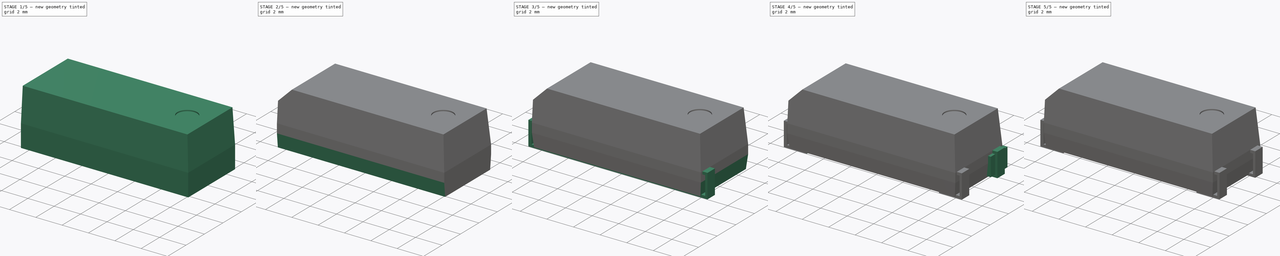
[diagram: build sequence overview — one tinted view per stage of 5, left to right]
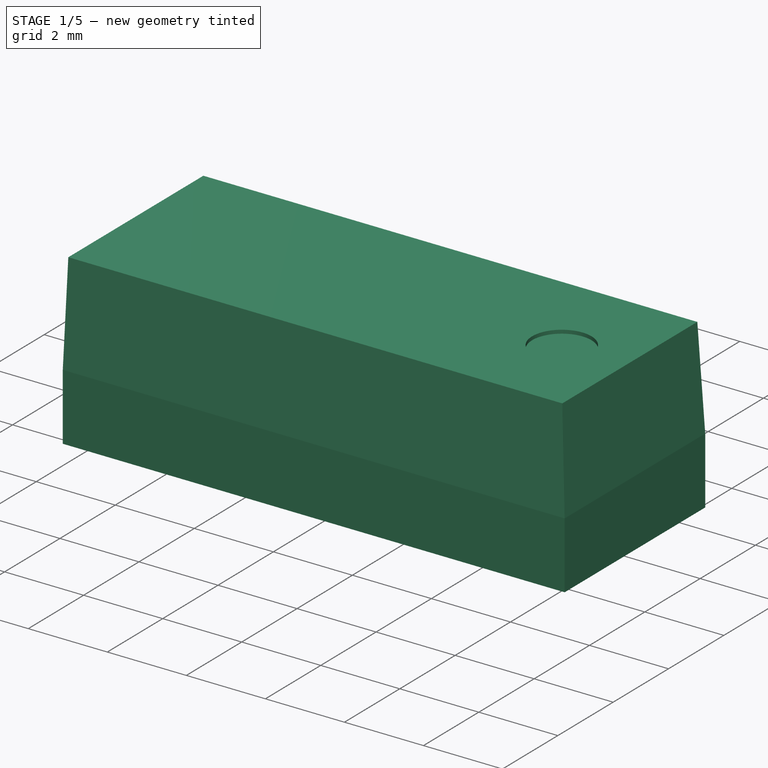
[diagram: stage 1 of 5 — iso view after this stage's code; geometry added in this stage tinted green]
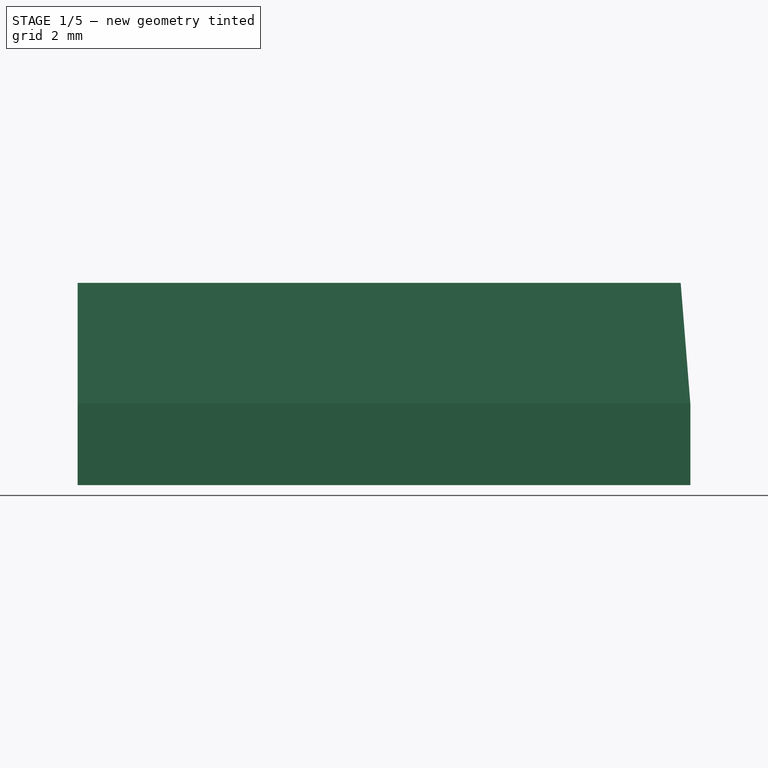
[diagram: stage 1 of 5 — front view after this stage's code; geometry added in this stage tinted green]
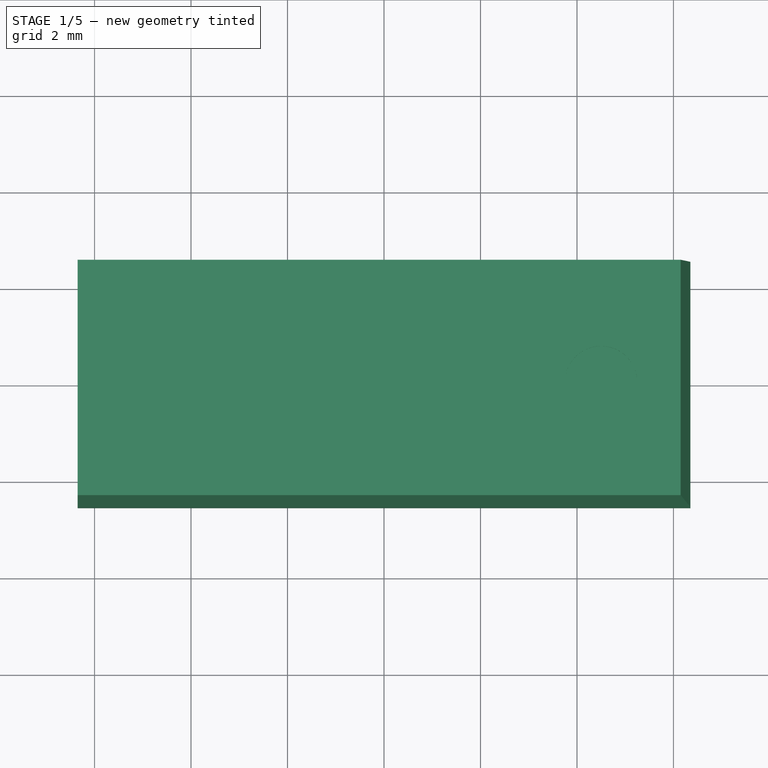
[diagram: stage 1 of 5 — top view after this stage's code; geometry added in this stage tinted green]
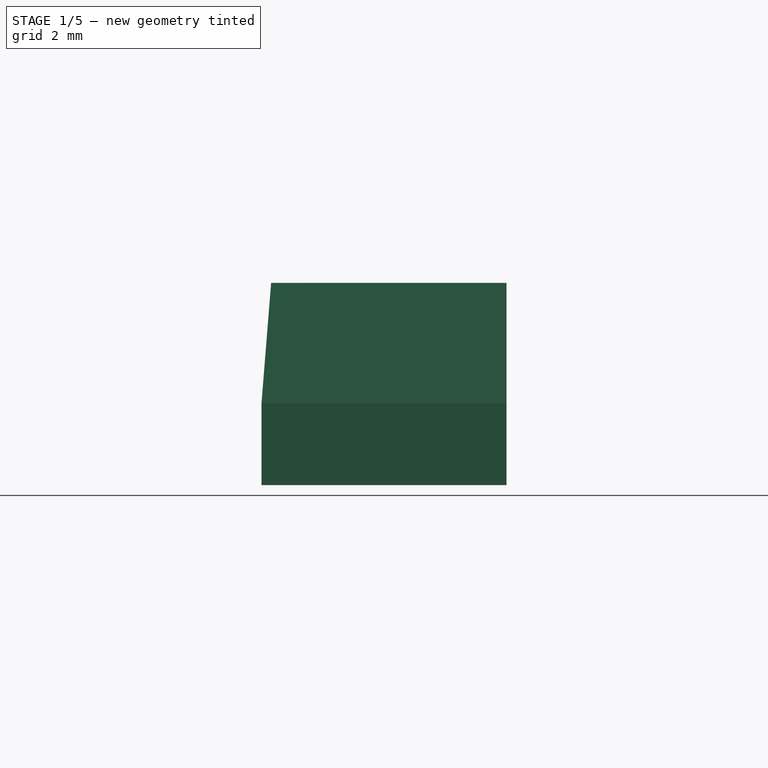
[diagram: stage 1 of 5 — right view after this stage's code; geometry added in this stage tinted green]
FCSTD DOCUMENT  (FreeCAD 0.17R11223 (Git))
Label: Crystal_SMD_SeikoEpson_MA505_506_07
License: All rights reserved
LicenseURL: http://en.wikipedia.org/wiki/All_rights_reserved
objects: Part::Chamfer×8, Part::Box×6, Part::Cut×5, Part::MultiFuse×2, Part::Feature×2, Sketcher::SketchObject×1, PartDesign::Pad×1, PartDesign::Body×1, Part::Cylinder×1
note: 28 computed .brp shape members not serialized (recipe doc carries the construction recipe); baked Part::Feature solids carry a one-line shape summary decoded from their .brp

FEATURE [Sketcher::SketchObject] Sketch
  MapMode = 5
  Support = -> [XY_Plane]
  sketch-geometry (4):
    g0: LineSegment StartX=-6.35 StartY=2.54 StartZ=0 EndX=6.35 EndY=2.54 EndZ=0
    g1: LineSegment StartX=6.35 StartY=2.54 StartZ=0 EndX=6.35 EndY=-2.54 EndZ=0
    g2: LineSegment StartX=6.35 StartY=-2.54 StartZ=0 EndX=-6.35 EndY=-2.54 EndZ=0
    g3: LineSegment StartX=-6.35 StartY=-2.54 StartZ=0 EndX=-6.35 EndY=2.54 EndZ=0
  constraints (12):
    c: Coincident(g0,g1)
    c: Coincident(g1,g2)
    c: Coincident(g2,g3)
    c: Coincident(g3,g0)
    c: Horizontal(g0)
    c: Horizontal(g2)
    c: Vertical(g1)
    c: Vertical(g3)
    c: DistanceX(g0,g0) = 12.7
    c: DistanceY(g1,g1) = 5.08
    c: DistanceY(g-1,g0) = 2.54
    c: DistanceX(g0,g-1) = 6.35
FEATURE [PartDesign::Pad] Pad
  Length = 4.19
  Length2 = 100
  Profile = -> Sketch
  Type = 0
FEATURE [PartDesign::Body] Body
  Group = -> [Sketch,Pad]
  Origin = -> BodyOrigin
  Placement = pos=(0,0,0.1) rot=(0,0,1;0rad)
  Tip = -> Pad
FEATURE [Part::Cylinder] Cylinder
  Angle = 360
  AttacherType = Attacher::AttachEngine3D
  Height = 1
  Placement = pos=(4.5,0,4.2) rot=(0,0,1;0rad)
  Radius = 0.75
FEATURE [Part::Cut] Cut004
  Base = -> Body
  Tool = -> Cylinder
FEATURE [Part::Chamfer] Chamfer
  Base = -> Cut004
  Edges = 1 edges: [Edge12 r1=0.2 r2=2.5]
FEATURE [Part::Chamfer] Chamfer001
  Base = -> Chamfer
  Edges = 1 edges: [Edge14 r1=0.2 r2=2.5]
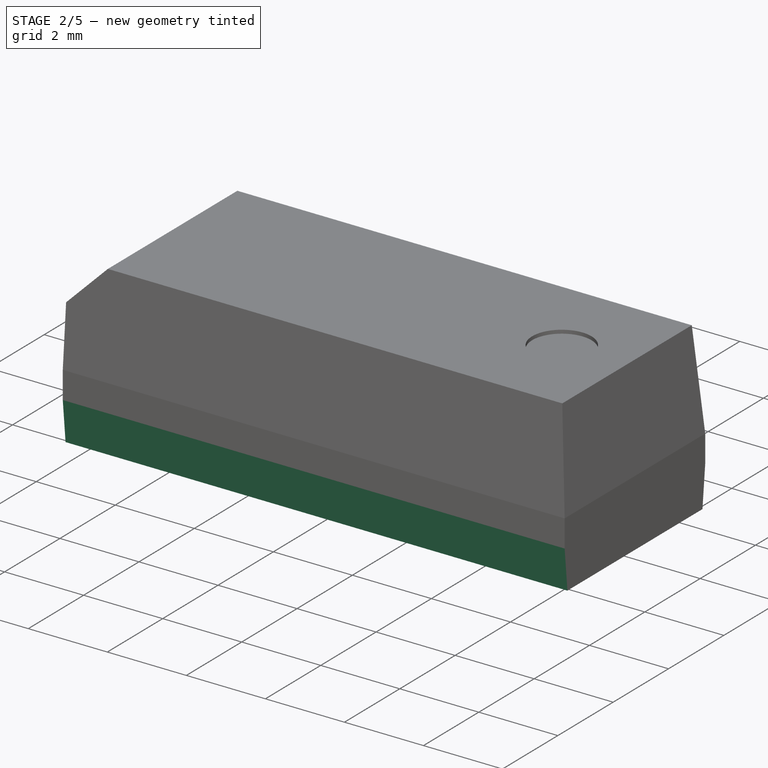
[diagram: stage 2 of 5 — iso view after this stage's code; geometry added in this stage tinted green]
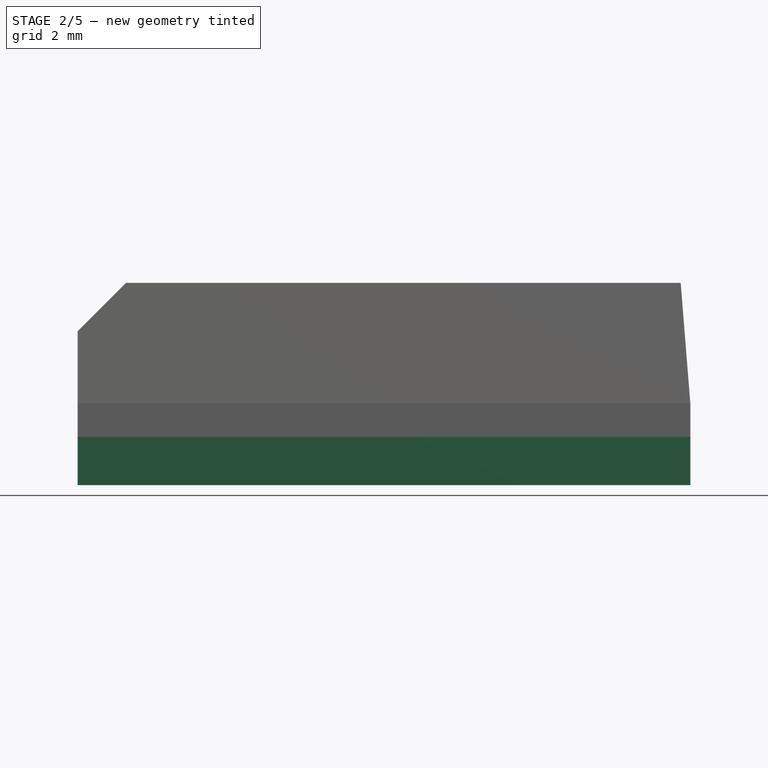
[diagram: stage 2 of 5 — front view after this stage's code; geometry added in this stage tinted green]
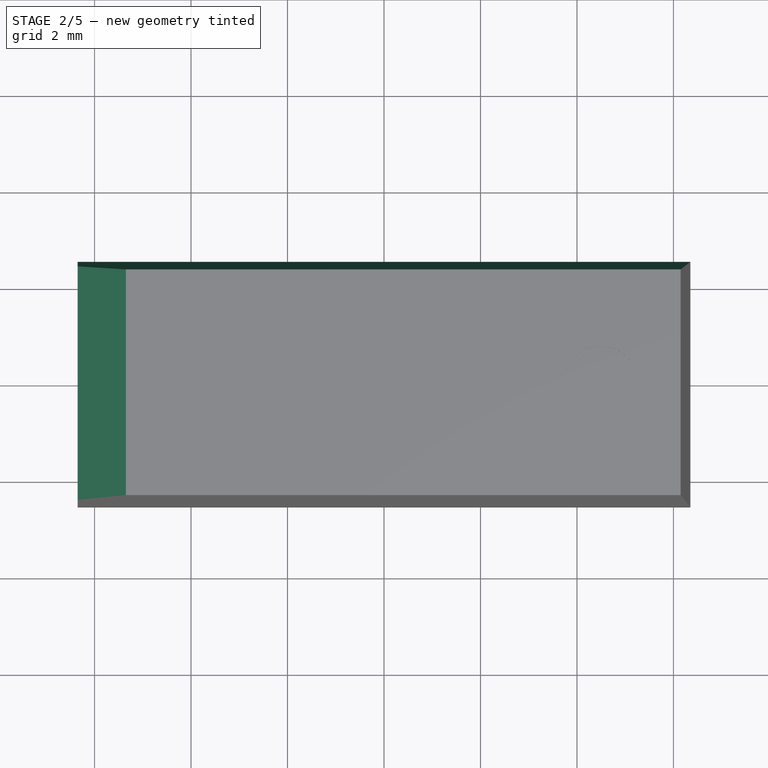
[diagram: stage 2 of 5 — top view after this stage's code; geometry added in this stage tinted green]
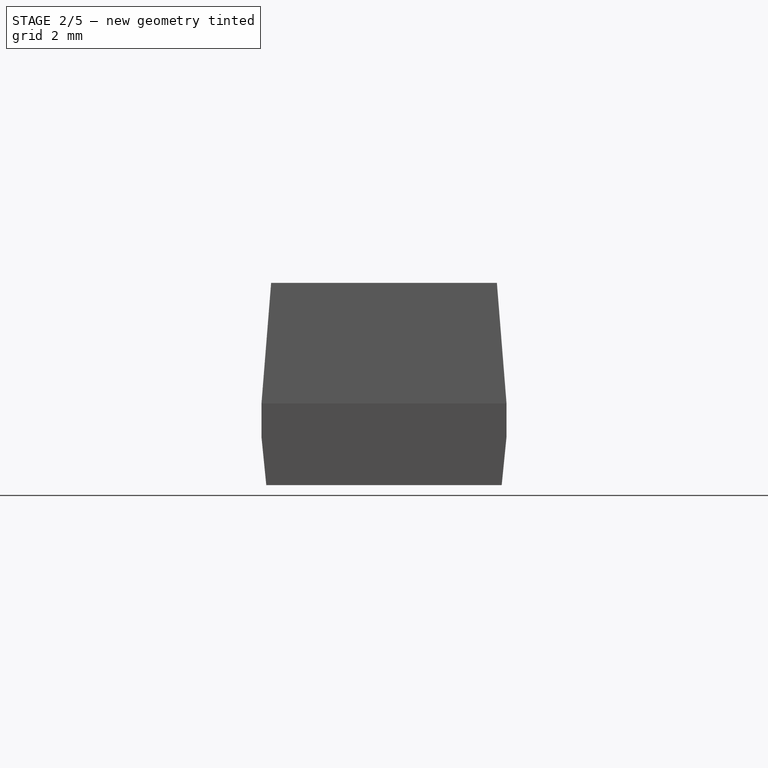
[diagram: stage 2 of 5 — right view after this stage's code; geometry added in this stage tinted green]
FEATURE [Part::Chamfer] Chamfer002
  Base = -> Chamfer001
  Edges = 1 edges: [Edge7 r1=0.2 r2=2.5]
FEATURE [Part::Chamfer] Chamfer003
  Base = -> Chamfer002
  Edges = 1 edges r=1: [Edge4]
FEATURE [Part::Chamfer] Chamfer004
  Base = -> Chamfer003
  Edges = 1 edges: [Edge25 r1=1 r2=0.1]
FEATURE [Part::Chamfer] Chamfer005
  Base = -> Chamfer004
  Edges = 1 edges: [Edge10 r1=0.1 r2=1]
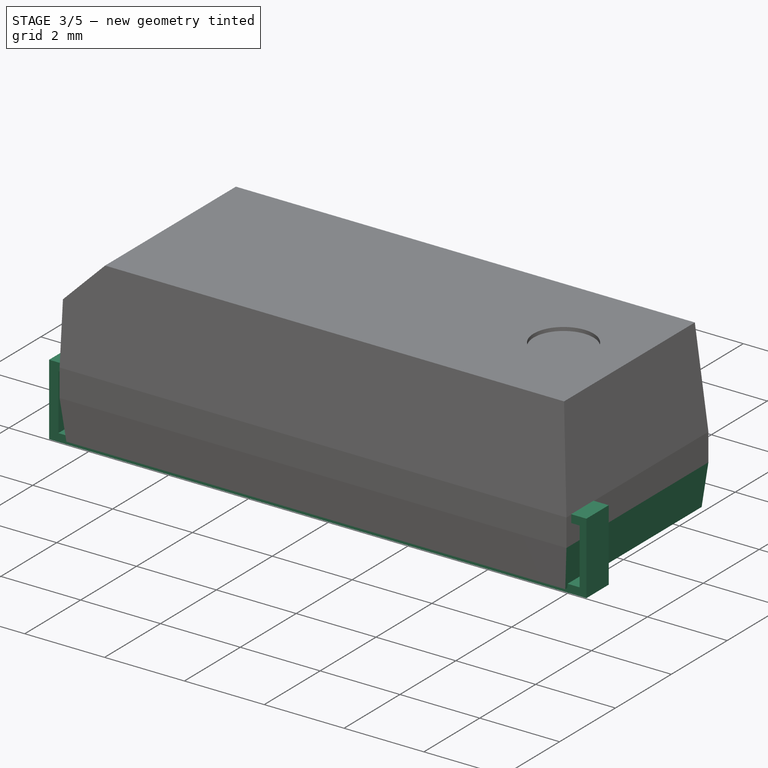
[diagram: stage 3 of 5 — iso view after this stage's code; geometry added in this stage tinted green]
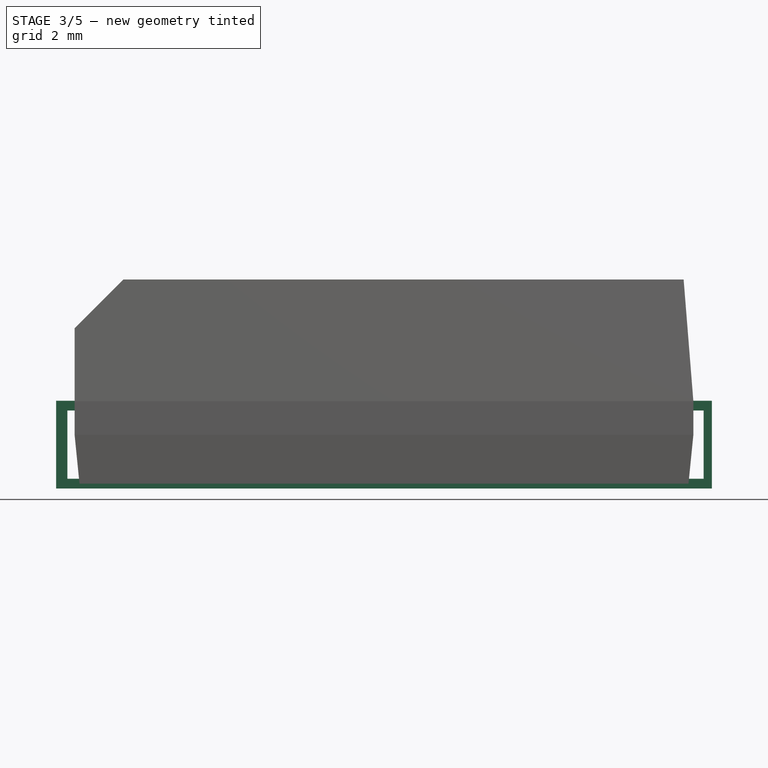
[diagram: stage 3 of 5 — front view after this stage's code; geometry added in this stage tinted green]
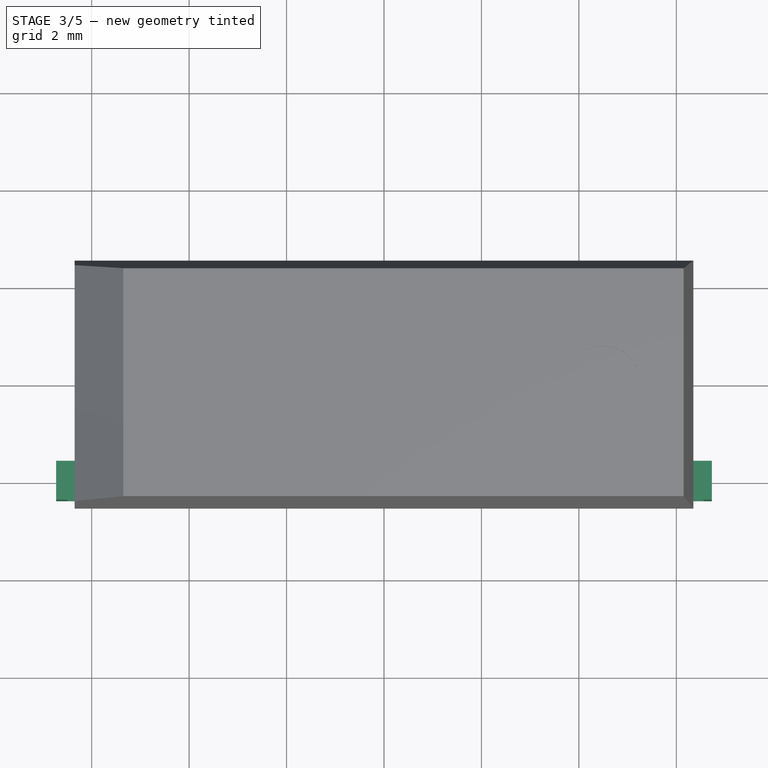
[diagram: stage 3 of 5 — top view after this stage's code; geometry added in this stage tinted green]
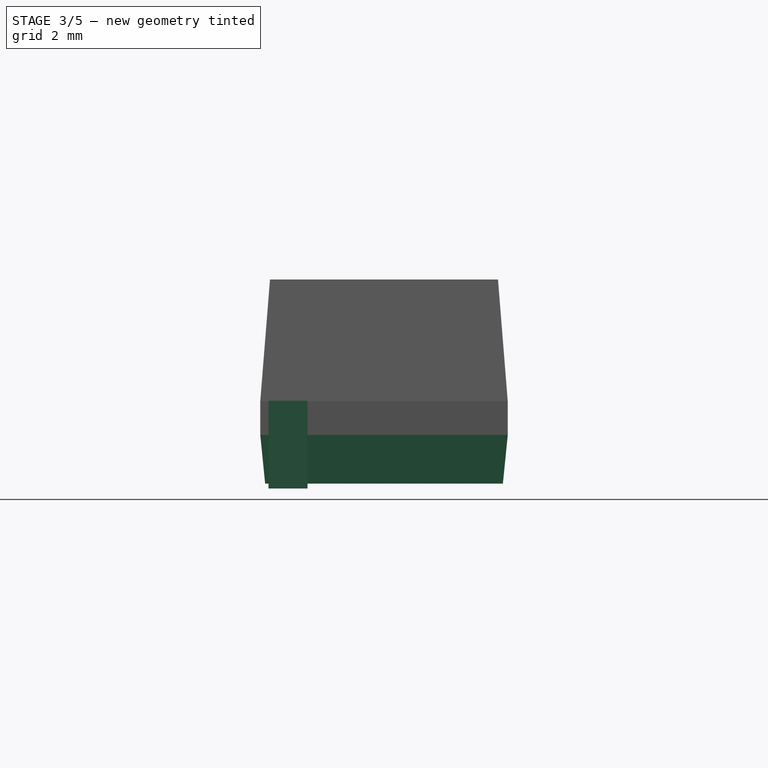
[diagram: stage 3 of 5 — right view after this stage's code; geometry added in this stage tinted green]
FEATURE [Part::Box] Box009  label="Kub009"
  AttacherType = Attacher::AttachEngine3D
  Height = 1.8
  Length = 13.46
  Placement = pos=(-6.73,-2.37,0) rot=(0,0,1;0rad)
  Width = 0.8
FEATURE [Part::Box] Box011  label="Kub011"
  AttacherType = Attacher::AttachEngine3D
  Height = 1.4
  Length = 13.06
  Placement = pos=(-6.5,-3,0.2) rot=(0,0,1;0rad)
  Width = 1.8
FEATURE [Part::Cut] Cut002
  Base = -> Box009
  Tool = -> Box011
FEATURE [Part::Chamfer] Chamfer006
  Base = -> Chamfer005
  Edges = 1 edges: [Edge1 r1=1 r2=0.1]
FEATURE [Part::Chamfer] Chamfer007
  Base = -> Chamfer006
  Edges = 1 edges: [Edge26 r1=0.1 r2=1]
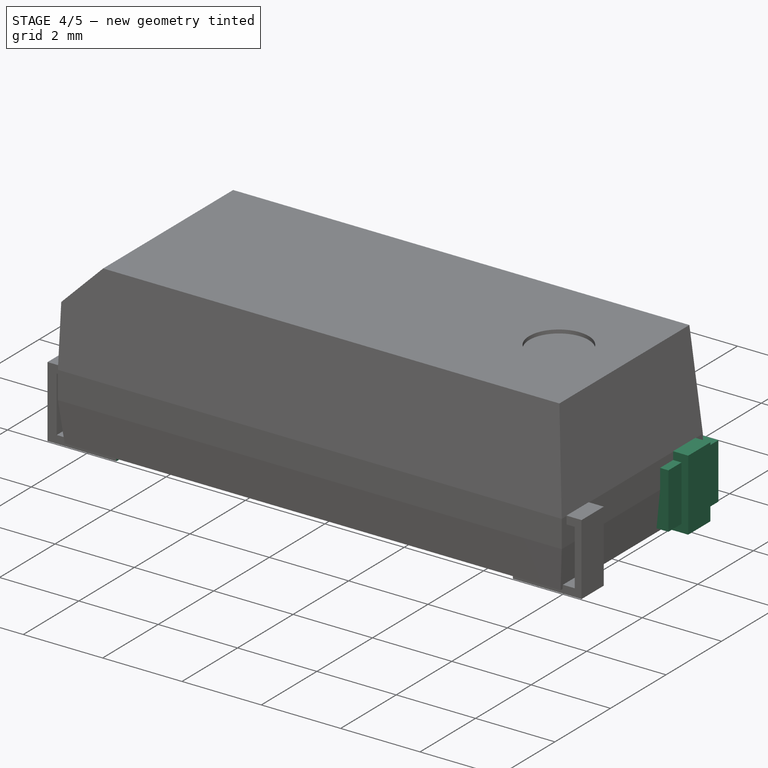
[diagram: stage 4 of 5 — iso view after this stage's code; geometry added in this stage tinted green]
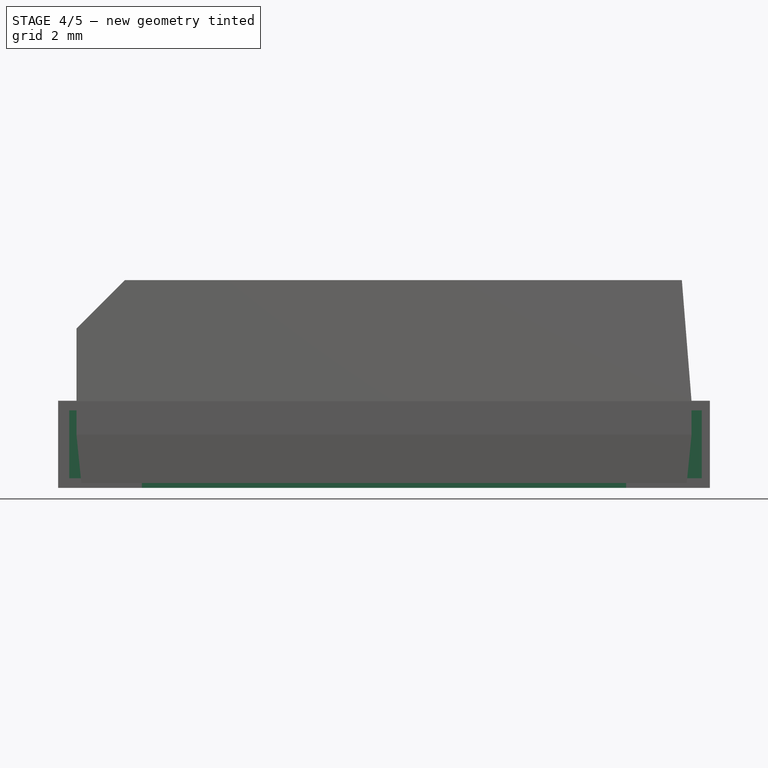
[diagram: stage 4 of 5 — front view after this stage's code; geometry added in this stage tinted green]
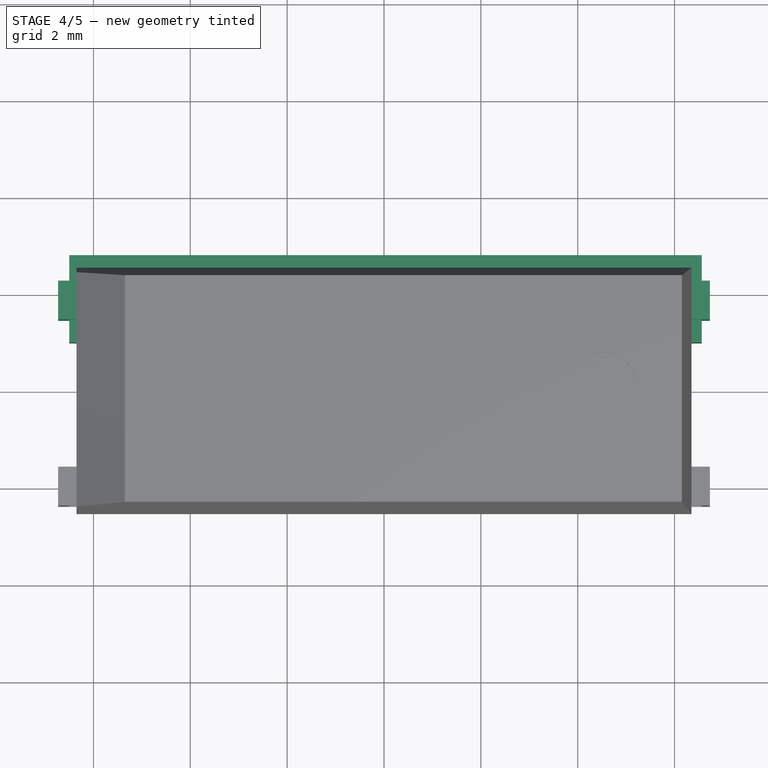
[diagram: stage 4 of 5 — top view after this stage's code; geometry added in this stage tinted green]
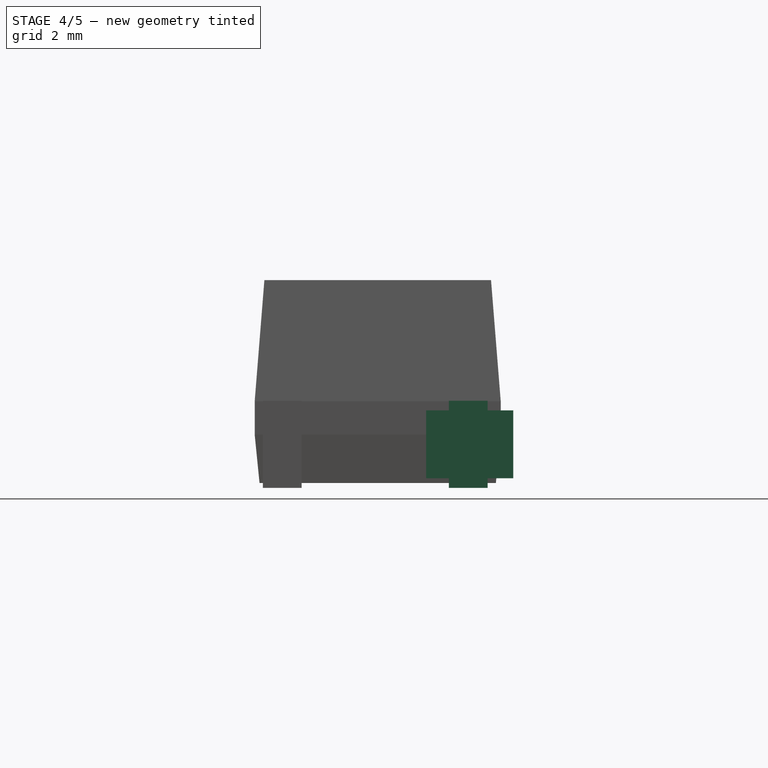
[diagram: stage 4 of 5 — right view after this stage's code; geometry added in this stage tinted green]
FEATURE [Part::Box] Box007  label="Kub007"
  AttacherType = Attacher::AttachEngine3D
  Height = 1.8
  Length = 13.46
  Placement = pos=(-6.73,1.47,0) rot=(0,0,1;0rad)
  Width = 0.8
FEATURE [Part::Box] Box010  label="Kub010"
  AttacherType = Attacher::AttachEngine3D
  Height = 1.4
  Length = 13.06
  Placement = pos=(-6.5,1,0.2) rot=(0,0,1;0rad)
  Width = 1.8
FEATURE [Part::Box] Box013  label="Kub013"
  AttacherType = Attacher::AttachEngine3D
  Height = 1.4
  Length = 10
  Placement = pos=(-5,-3,-0.8) rot=(0,0,1;0rad)
  Width = 1.8
FEATURE [Part::Cut] Cut003
  Base = -> Cut002
  Tool = -> Box013
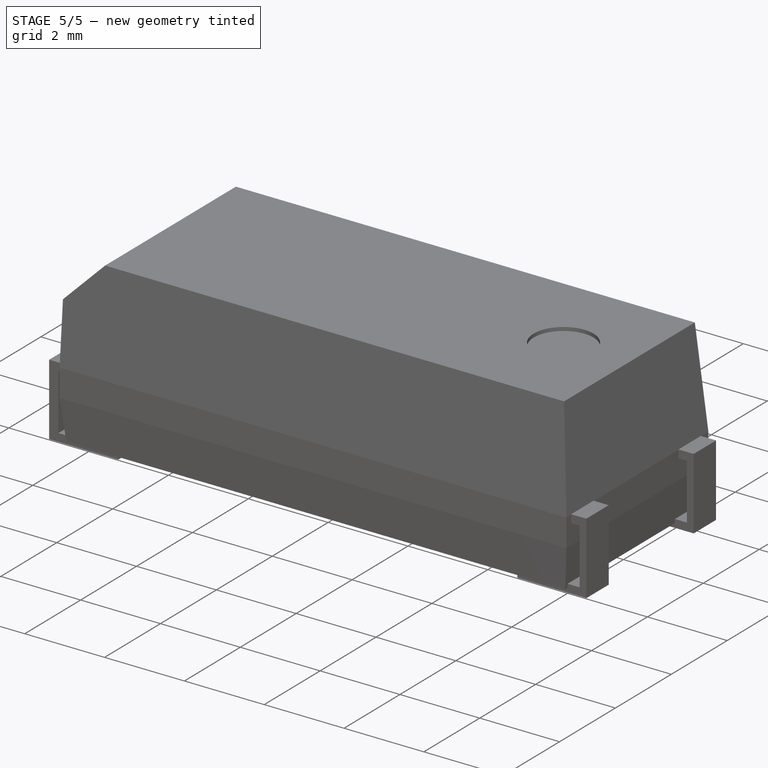
[diagram: stage 5 of 5 — iso view after this stage's code; geometry added in this stage tinted green]
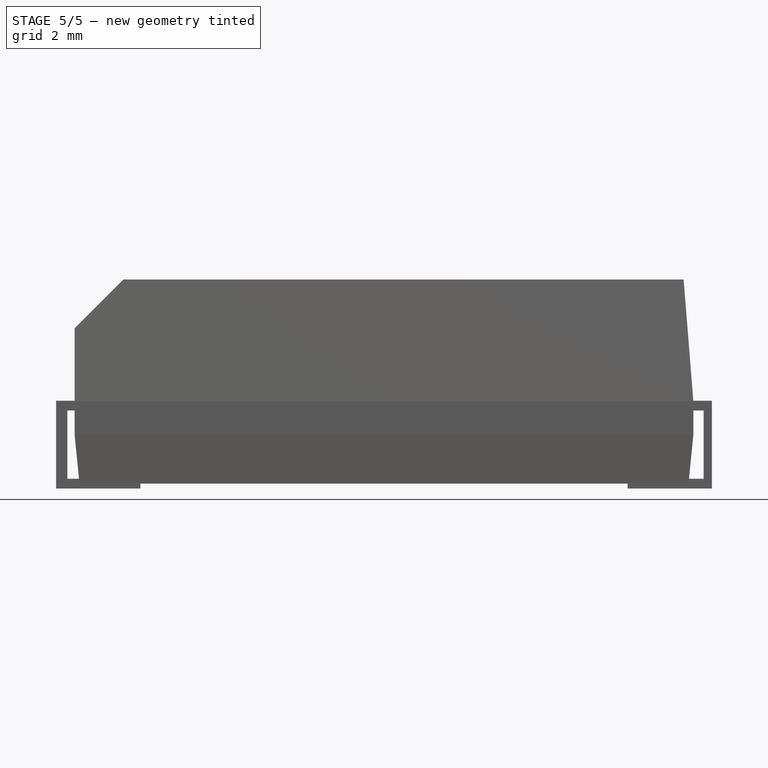
[diagram: stage 5 of 5 — front view after this stage's code; geometry added in this stage tinted green]
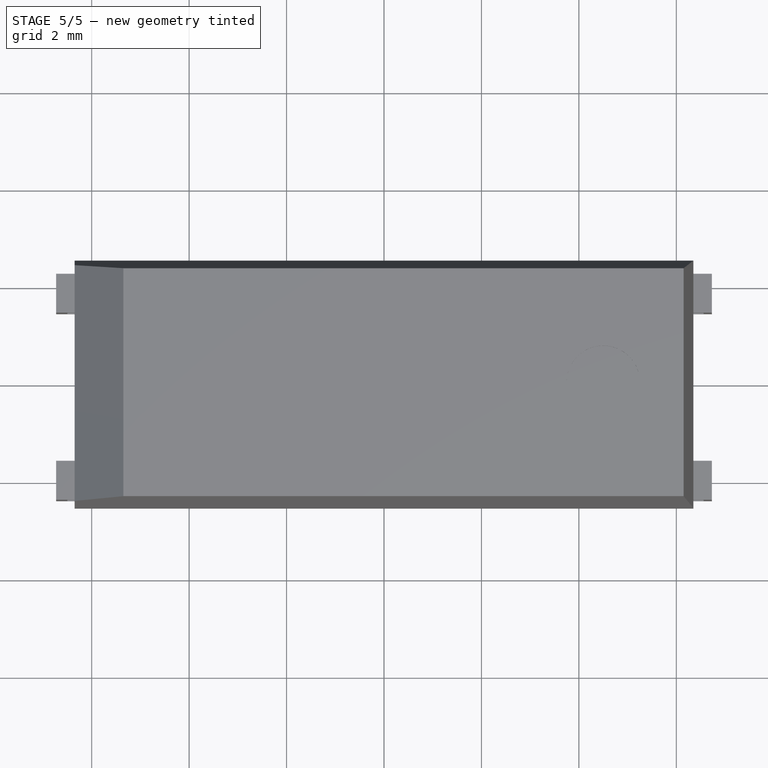
[diagram: stage 5 of 5 — top view after this stage's code; geometry added in this stage tinted green]
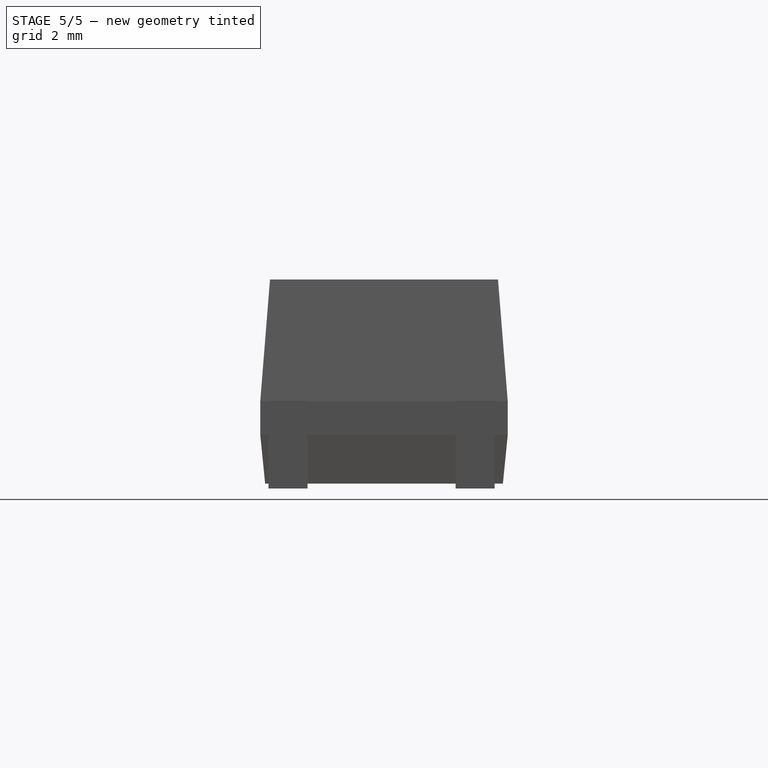
[diagram: stage 5 of 5 — right view after this stage's code; geometry added in this stage tinted green]
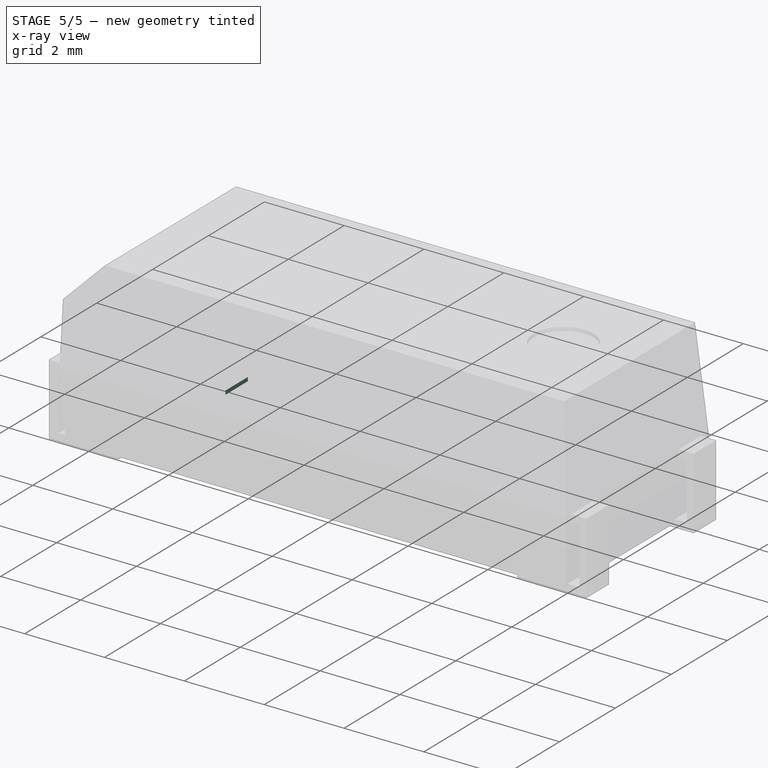
[diagram: stage 5 of 5 — x-ray composite at the iso view; earlier geometry ghosted, this stage's added geometry solid]
FEATURE [Part::Box] Box012  label="Kub012"
  AttacherType = Attacher::AttachEngine3D
  Height = 1.4
  Length = 10
  Placement = pos=(-5,1,-0.8) rot=(0,0,1;0rad)
  Width = 1.8
FEATURE [Part::Cut] Cut
  Base = -> Box007
  Tool = -> Box010
FEATURE [Part::Cut] Cut001
  Base = -> Cut
  Tool = -> Box012
FEATURE [Part::MultiFuse] Cut001_mp_cp  label="Cut001_fd"
  Shapes = -> [Cut001,Chamfer007,Cut003]
FEATURE [Part::Feature] Cut001_fd_cp  label="Cut001_sp"
  shape: bbox 13.46 x 5.08 x 4.29 mm, 52 faces (baked)
FEATURE [Part::MultiFuse] Cut001_fd_mp_cp  label="Cut001_fd_fd"
  Shapes = -> [Cut001_mp_cp,Cut001_fd_cp]
FEATURE [Part::Feature] Shape  label="Cut001_fd_sp"
  shape: bbox 13.46 x 5.08 x 4.29 mm, 52 faces (baked)
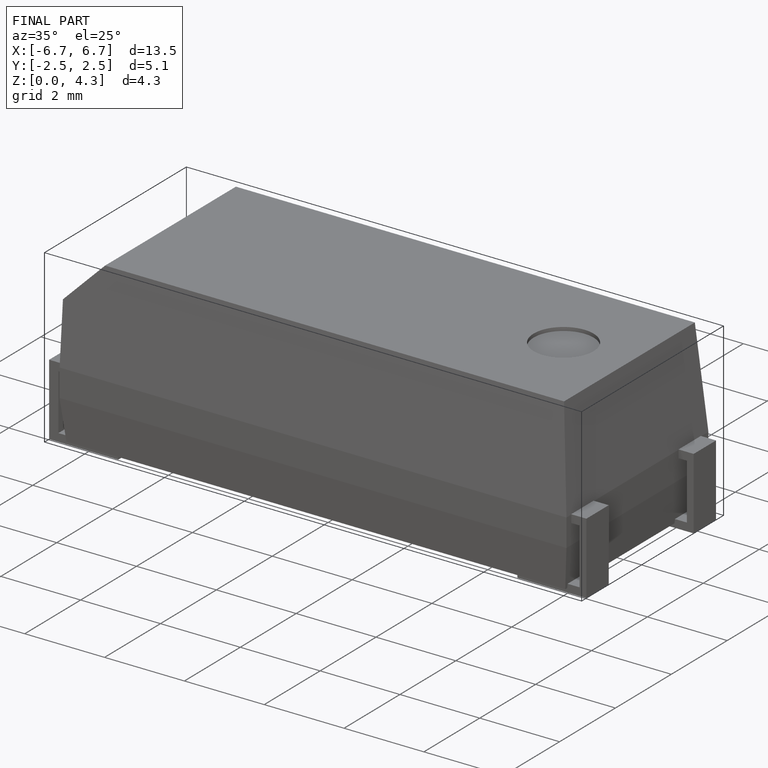
[diagram: finished part — iso view with bounding-box wireframe]
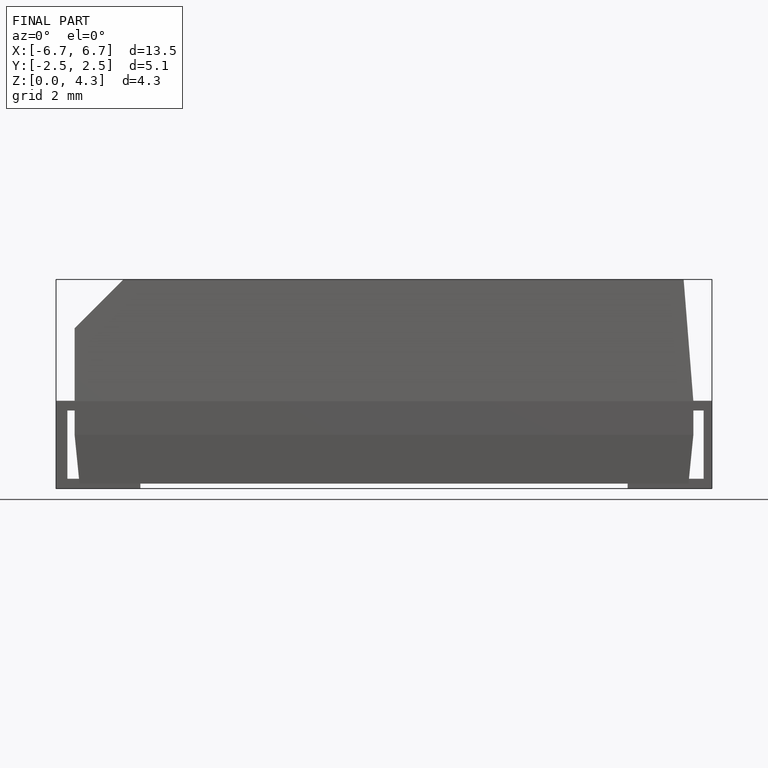
[diagram: finished part — front view with bounding-box wireframe]
